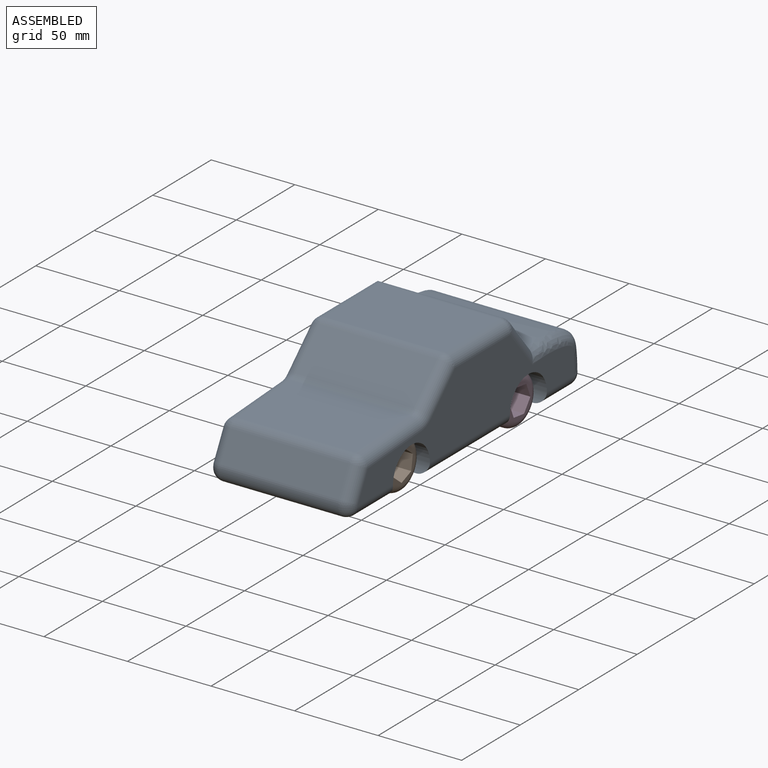
[diagram: assembled view]
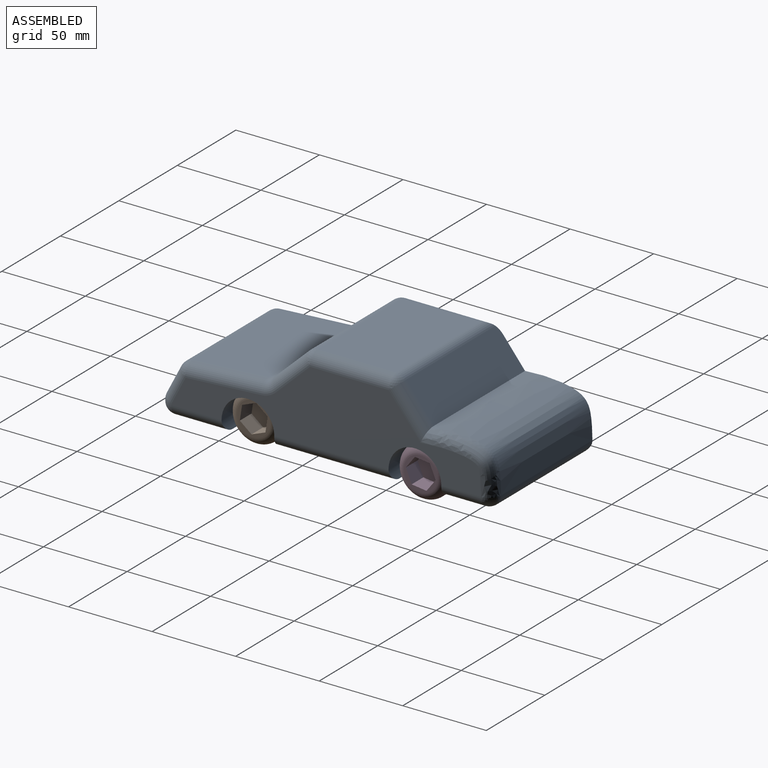
[diagram: assembled view, second angle]
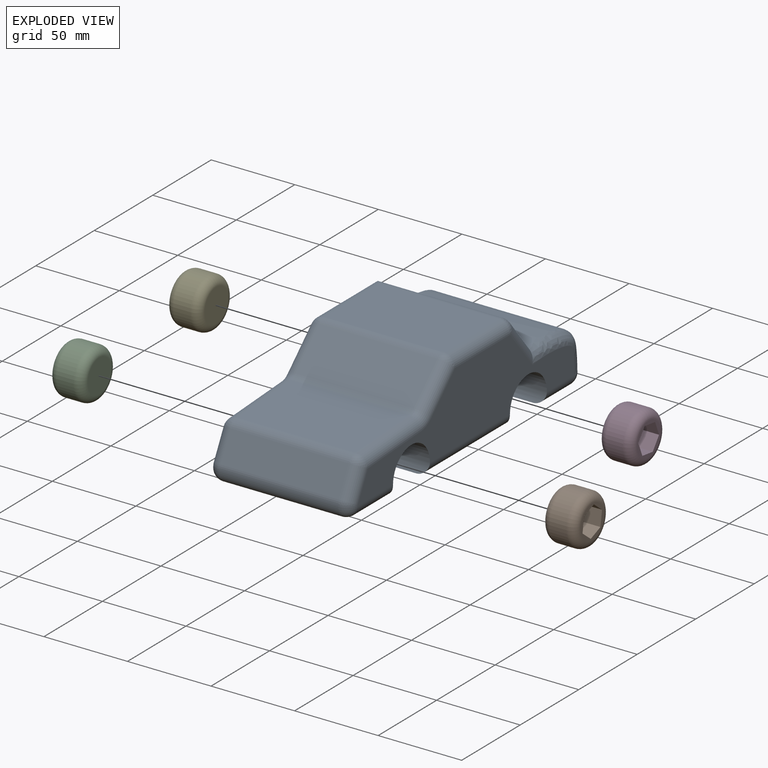
[diagram: exploded view]
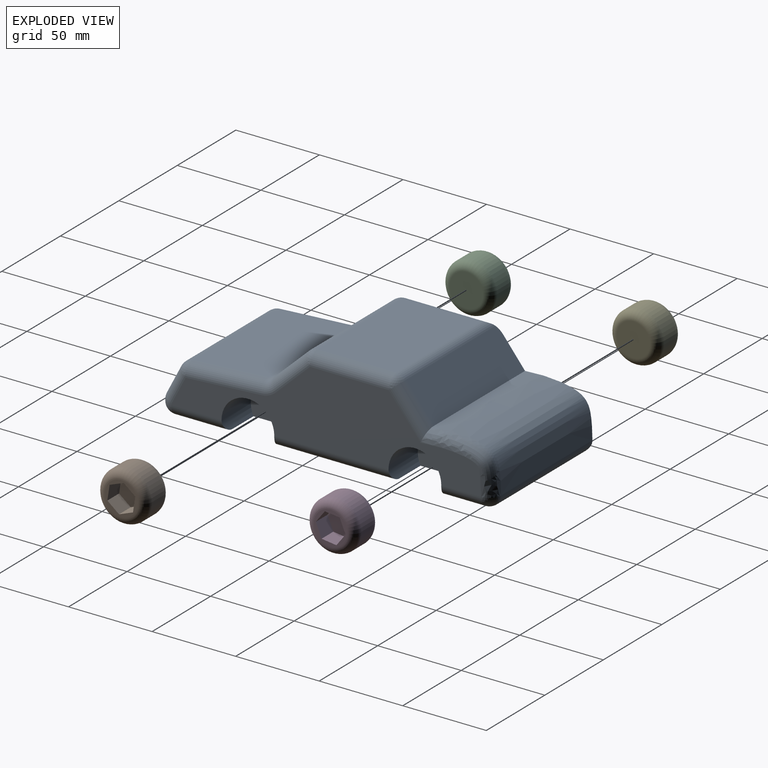
[diagram: exploded view, second angle]
ASSEMBLY  parts=5 mates=4
PART A: 55 faces, bbox 85.2x199.8x57.2 mm
  f0: plane 185.49x71mm, normal (0,0,-1), area 11131.8mm2, adj f2,f3,f4,f5,f6,f41,f42,f46
  f1: plane 192.54x43.28mm, normal (-1,0,0), area 4880.7mm2, adj f2,f3,f4,f7,f8,f18,f19,f24
  f2: cylinder r=7mm len=31.67mm, axis (0,1,0), area 339.2mm2, adj f0,f1,f44,f53
  f3: cylinder r=7mm len=71.62mm, axis (0,1,0), area 769.5mm2, adj f0,f1,f51,f53
  f4: cylinder r=7mm len=32.58mm, axis (0,1,0), area 310.8mm2, adj f0,f1,f46,f51
  f5: cylinder r=7mm len=31.67mm, axis (0,-1,0), area 339.2mm2, adj f0,f14,f38,f49
  f6: cylinder r=7mm len=71.62mm, axis (0,-1,0), area 769.5mm2, adj f0,f14,f47,f49
  f7: extruded ~78x40.36mm, area 4629.7mm2, adj f1,f8,f43,f46
  f8: plane 78.22x20.76mm, normal (0,0.78,0.63), area 2056.4mm2, adj f1,f7,f28,f32,f39
  f9: plane 71x47.09mm, normal (0,0,1), area 3343.3mm2, adj f22,f28,f31,f32
  f10: plane 71x20.42mm, normal (0,-0.69,0.73), area 1994.1mm2, adj f15,f18,f21,f22
  f11: plane 71x45.25mm, normal (0,-0.06,1), area 3218.4mm2, adj f15,f16,f24,f25
  f12: plane 71x16.34mm, normal (0,-0.89,0.46), area 1308.3mm2, adj f25,f26,f33,f34
  f13: plane 71x0.83mm, normal (0,-1,0.07), area 59.3mm2, adj f34,f35,f40,f41
  f14: plane 185.49x43mm, normal (1,0,0), area 4315.1mm2, adj f5,f6,f16,f17,f21,f26,f31,f35
  f15: cylinder r=7mm len=71mm, axis (1,0,0), area 346mm2, adj f10,f11,f17,f19
  f16: cylinder r=7mm len=45.67mm, axis (0,1,0.06), area 498.4mm2, adj f11,f14,f17,f20
  f17: torus R=14mm, axis (1,0,0), area 73.1mm2, adj f14,f15,f16,f21
  f18: cylinder r=7mm len=25.23mm, axis (0,-0.73,-0.69), area 308.8mm2, adj f1,f10,f19,f23
  f19: torus R=14mm, axis (1,0,0), area 73.1mm2, adj f1,f15,f18,f24
  f20: sphere r=7mm, area 51.1mm2, adj f16,f25,f26
  f21: cylinder r=7mm len=25.23mm, axis (0,0.73,0.69), area 308.8mm2, adj f10,f14,f17,f27
  f22: cylinder r=7mm len=71mm, axis (-1,0,0), area 376.1mm2, adj f9,f10,f23,f27
  f23: sphere r=7mm, area 47.3mm2, adj f18,f22,f28
  f24: cylinder r=7mm len=45.67mm, axis (0,-1,-0.06), area 498.4mm2, adj f1,f11,f19,f29
  f25: cylinder r=7mm len=71mm, axis (-1,0,0), area 511.7mm2, adj f11,f12,f20,f29
  f26: cylinder r=7mm len=19.58mm, axis (0,0.46,0.89), area 202.6mm2, adj f12,f14,f20,f30
  f27: sphere r=7mm, area 47.3mm2, adj f21,f22,f31
  f28: cylinder r=7mm len=56.09mm, axis (0,-1,0), area 569.1mm2, adj f1,f8,f9,f23,f32
  f29: sphere r=7mm, area 56.5mm2, adj f24,f25,f33
  f30: sphere r=7mm, area 14.7mm2, adj f26,f34,f35
  f31: cylinder r=7mm len=47.09mm, axis (0,1,0), area 517.8mm2, adj f9,f14,f27,f36
  f32: cylinder r=7mm len=76.45mm, axis (-1,0,0), area 460.2mm2, adj f8,f9,f28,f36
  f33: cylinder r=7mm len=19.58mm, axis (0,-0.46,-0.89), area 202.6mm2, adj f1,f12,f29,f37
  f34: cylinder r=7mm len=71mm, axis (-1,0,0), area 204.3mm2, adj f12,f13,f30,f37
  f35: cylinder r=7mm len=7.04mm, axis (0,0.07,1), area 9.2mm2, adj f13,f14,f30,f38
  f36: sphere r=7mm, area 42mm2, adj f31,f32,f39
  f37: sphere r=7mm, area 15.5mm2, adj f33,f34,f40
  f38: sphere r=7mm, area 80.4mm2, adj f5,f35,f41
  f39: cylinder r=7mm len=27.86mm, axis (0,0.63,-0.78), area 310.9mm2, adj f8,f14,f36,f43
  f40: cylinder r=7mm len=7.04mm, axis (0,-0.07,-1), area 9.2mm2, adj f1,f13,f37,f44
  f41: cylinder r=7mm len=71mm, axis (-1,0,0), area 815.3mm2, adj f0,f13,f38,f44
  f42: cylinder r=7mm len=25.58mm, axis (0,-1,0), area 272.3mm2, adj f0,f14,f45,f47
  f43: bspline ~63.56x29.5mm, area 627.4mm2, adj f7,f14,f39,f45
  f44: sphere r=7mm, area 79.6mm2, adj f2,f40,f41
  f45: sphere r=7mm, area 49.1mm2, adj f42,f43,f46
  f46: cylinder r=7mm len=78mm, axis (-1,0,0), area 836.7mm2, adj f0,f1,f4,f7,f45
  f47: cylinder r=15.79mm len=31.58mm, axis (1,0,0), area 1552mm2, adj f0,f6,f14,f42,f48
  f48: plane 31.58x22.79mm, normal (1,0,0), area 605.2mm2, adj f0,f47
  f49: cylinder r=15.79mm len=31.58mm, axis (1,0,0), area 1552mm2, adj f0,f5,f6,f14,f50
  f50: plane 31.58x22.79mm, normal (1,0,0), area 605.2mm2, adj f0,f49
  f51: cylinder r=15.79mm len=31.58mm, axis (-1,0,0), area 1552mm2, adj f0,f1,f3,f4,f52
  f52: plane 31.58x22.79mm, normal (-1,0,0), area 605.2mm2, adj f0,f51
  f53: cylinder r=15.79mm len=31.58mm, axis (-1,0,0), area 1552mm2, adj f0,f1,f2,f3,f54
  f54: plane 31.58x22.79mm, normal (-1,0,0), area 605.2mm2, adj f0,f53
PART B: 12 faces, bbox 20x32.5x32.5 mm
  f0: cylinder r=15mm len=30mm, axis (-1,0,0), area 942.5mm2, adj f3,f4
  f1: plane 20x20mm, normal (1,0,0), area 105.9mm2, adj f4,f5,f6,f7,f8,f9,f10
  f2: plane 20x20mm, normal (-1,0,0), area 314.2mm2, adj f3
  f3: torus R=10mm, axis (1,0,0), area 650.6mm2, adj f0,f2
  f4: torus R=10mm, axis (1,0,0), area 650.6mm2, adj f0,f1
  f5: plane 10x8.41mm, normal (0,-0.34,-0.94), area 89.5mm2, adj f1,f6,f10,f11
  f6: plane 10x6.86mm, normal (0,0.64,-0.77), area 89.5mm2, adj f1,f5,f7,f11
  f7: plane 10x8.82mm, normal (0,0.98,0.17), area 89.5mm2, adj f1,f6,f8,f11
  f8: plane 10x8.41mm, normal (0,0.34,0.94), area 89.5mm2, adj f1,f7,f9,f11
  f9: plane 10x6.86mm, normal (0,-0.64,0.77), area 89.5mm2, adj f1,f8,f10,f11
  f10: plane 10x8.82mm, normal (0,-0.98,-0.17), area 89.5mm2, adj f1,f5,f9,f11
  f11: plane 17.63x16.82mm, normal (1,0,0), area 208.2mm2, adj f5,f6,f7,f8,f9,f10
PART C: same geometry as B
PART D: same geometry as B
PART E: same geometry as B
PLACE A t=(-23.06,28.19,45.84)mm fixed
PLACE B rot(axis=(-1,0,0),18.6deg) t=(36.94,-24.33,25.05)mm
PLACE C rot(axis=(0,0.71,0.71),180deg) t=(1.94,-24.33,25.05)mm
PLACE D rot(axis=(1,0,0),12.7deg) t=(36.94,75.6,21.92)mm
PLACE E rot(axis=(0,0.67,0.74),180deg) t=(1.94,75.6,25.05)mm
MATE revolute E.f0 <-> A.f52  axis (1,0,0) through (1.94,75.6,25.05)mm
MATE revolute B.f0 <-> A.f50  axis (-1,0,0) through (36.94,-24.33,25.05)mm
MATE revolute C.f0 <-> A.f54  axis (1,0,0) through (1.94,-24.33,25.05)mm
MATE revolute D.f0 <-> A.f47  axis (-1,0,0) through (36.94,75.6,21.92)mm
